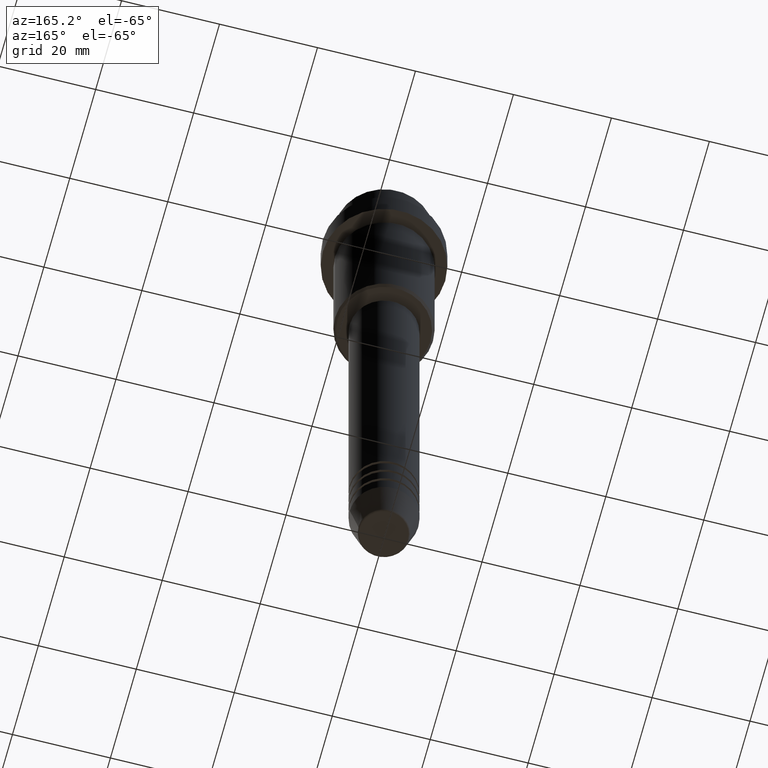
[diagram: clean part render]
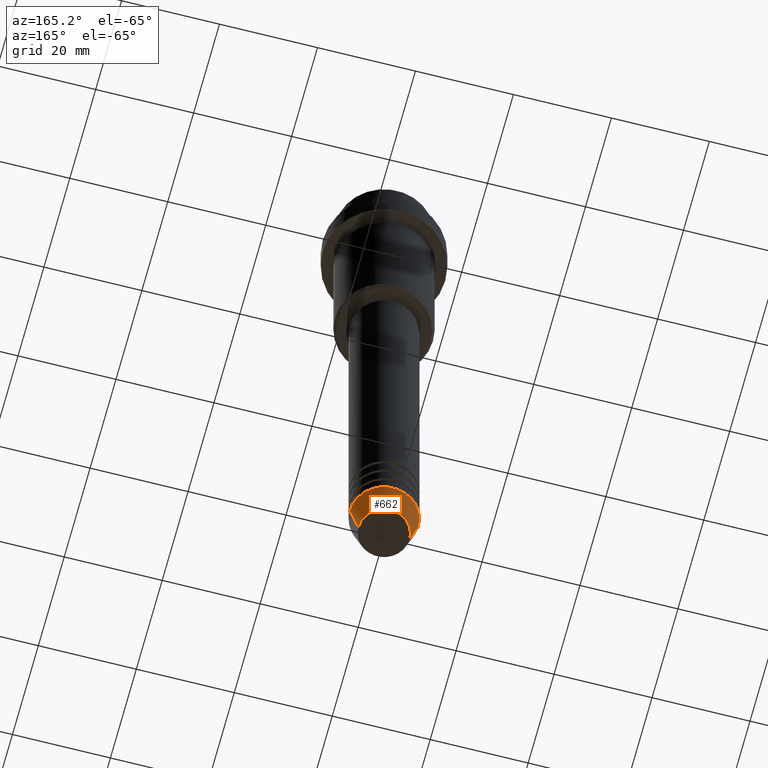
[diagram: same view with one face highlighted and labeled with its STEP entity id]
A machine part, auxiliary view. The second image highlights one B-rep face of the part: STEP entity #662.
In plain terms, the highlighted conical surface has half-angle 15 deg.
Its self-contained STEP definition (entity closure, byte-faithful):
#67 = CARTESIAN_POINT ( 'NONE',  ( 5.223655072137191269, 0.000000000000000000, -139.6294095225512706 ) ) ;
#103 = EDGE_LOOP ( 'NONE', ( #363, #271, #1028, #220 ) ) ;
#123 = CARTESIAN_POINT ( 'NONE',  ( 7.000000000000000000, 0.000000000000000000, -133.0000000000000000 ) ) ;
#211 = DIRECTION ( 'NONE',  ( -0.000000000000000000, -0.000000000000000000, 1.000000000000000000 ) ) ;
#220 = ORIENTED_EDGE ( 'NONE', *, *, #998, .F. ) ;
#223 = VECTOR ( 'NONE', #781, 1000.000000000000000 ) ;
#271 = ORIENTED_EDGE ( 'NONE', *, *, #537, .T. ) ;
#286 = CARTESIAN_POINT ( 'NONE',  ( 0.000000000000000000, 0.000000000000000000, -139.6294095225512706 ) ) ;
#306 = VERTEX_POINT ( 'NONE', #1179 ) ;
#335 = AXIS2_PLACEMENT_3D ( 'NONE', #941, #211, #1280 ) ;
#348 = CARTESIAN_POINT ( 'NONE',  ( -7.000000000000000000, 8.572527594031473190E-16, -133.0000000000000000 ) ) ;
#363 = ORIENTED_EDGE ( 'NONE', *, *, #1225, .T. ) ;
#411 = DIRECTION ( 'NONE',  ( -0.000000000000000000, -0.000000000000000000, 1.000000000000000000 ) ) ;
#452 = CIRCLE ( 'NONE', #335, 7.000000000000000000 ) ;
#498 = AXIS2_PLACEMENT_3D ( 'NONE', #1012, #1135, #907 ) ;
#537 = EDGE_CURVE ( 'NONE', #1149, #689, #671, .T. ) ;
#596 = FACE_OUTER_BOUND ( 'NONE', #103, .T. ) ;
#614 = CIRCLE ( 'NONE', #905, 5.223655072137191269 ) ;
#662 = ADVANCED_FACE ( 'NONE', ( #596 ), #1246, .T. ) ;
#671 = LINE ( 'NONE', #348, #723 ) ;
#689 = VERTEX_POINT ( 'NONE', #897 ) ;
#722 = DIRECTION ( 'NONE',  ( 1.000000000000000000, 0.000000000000000000, 0.000000000000000000 ) ) ;
#723 = VECTOR ( 'NONE', #787, 1000.000000000000000 ) ;
#757 = VERTEX_POINT ( 'NONE', #67 ) ;
#781 = DIRECTION ( 'NONE',  ( 0.2588190451025214056, 0.000000000000000000, 0.9659258262890680902 ) ) ;
#787 = DIRECTION ( 'NONE',  ( -0.2588190451025214056, 3.169619151431772953E-17, 0.9659258262890680902 ) ) ;
#829 = EDGE_CURVE ( 'NONE', #306, #689, #452, .T. ) ;
#897 = CARTESIAN_POINT ( 'NONE',  ( -7.000000000000000000, 8.572527594031473190E-16, -133.0000000000000000 ) ) ;
#905 = AXIS2_PLACEMENT_3D ( 'NONE', #286, #411, #722 ) ;
#907 = DIRECTION ( 'NONE',  ( 1.000000000000000000, 0.000000000000000000, 0.000000000000000000 ) ) ;
#941 = CARTESIAN_POINT ( 'NONE',  ( 0.000000000000000000, 0.000000000000000000, -133.0000000000000000 ) ) ;
#998 = EDGE_CURVE ( 'NONE', #757, #306, #1320, .T. ) ;
#1012 = CARTESIAN_POINT ( 'NONE',  ( 0.000000000000000000, 0.000000000000000000, -133.0000000000000000 ) ) ;
#1028 = ORIENTED_EDGE ( 'NONE', *, *, #829, .F. ) ;
#1135 = DIRECTION ( 'NONE',  ( -0.000000000000000000, -0.000000000000000000, 1.000000000000000000 ) ) ;
#1149 = VERTEX_POINT ( 'NONE', #1362 ) ;
#1179 = CARTESIAN_POINT ( 'NONE',  ( 7.000000000000000000, 0.000000000000000000, -133.0000000000000000 ) ) ;
#1225 = EDGE_CURVE ( 'NONE', #757, #1149, #614, .T. ) ;
#1246 = CONICAL_SURFACE ( 'NONE', #498, 7.000000000000000000, 0.2617993877991501295 ) ;
#1280 = DIRECTION ( 'NONE',  ( 1.000000000000000000, 0.000000000000000000, 0.000000000000000000 ) ) ;
#1320 = LINE ( 'NONE', #123, #223 ) ;
#1362 = CARTESIAN_POINT ( 'NONE',  ( -5.223655072137191269, 7.484830028987061160E-16, -139.6294095225512706 ) ) ;